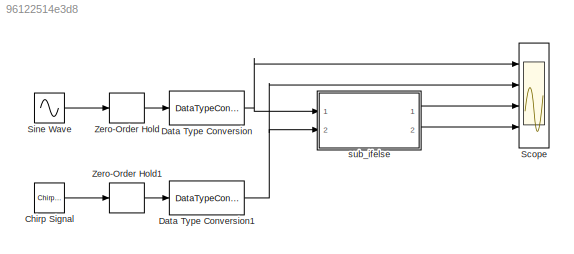
MODEL slx_96122514e3d8
KIND model
CONFIG AbsTol = auto
CONFIG FixedStep = auto
CONFIG MaxStep = auto
CONFIG MinStep = auto
CONFIG PreLoadFcn =  Param1=fi(0.2,1,16,14)
CONFIG RelTol = 1e-3
CONFIG SampleTimeConstraint = Unconstrained
CONFIG Solver = FixedStepDiscrete
CONFIG SolverMode = SingleTasking
CONFIG SolverName = FixedStepDiscrete
CONFIG StartTime = 0.0
CONFIG StopTime = 1
BLOCK [Reference] Chirp Signal  REF=simulink/Sources/Chirp Signal
  Ports = [0, 1]
  SourceBlock = simulink/Sources/Chirp Signal
  SourceType = chirp
BLOCK [DataTypeConversion] Data Type Conversion
  OutDataTypeStr = fixdt(1,16,14)
  RndMeth = Floor
  SaturateOnIntegerOverflow = off
BLOCK [DataTypeConversion] Data Type Conversion1
  OutDataTypeStr = fixdt(1,16,14)
  RndMeth = Floor
  SaturateOnIntegerOverflow = off
BLOCK [Scope] Scope
  NumInputPorts = 4
  Ports = [4]
  ScopeSpecificationString = Simulink.scopes.TimeScopeBlockCfg('CurrentConfiguration', extmgr.ConfigurationSet(extmgr.Configuration('Core','General UI',true),extmgr.Configuration('Core','Source UI',true),extmgr.Configuration('Sources','WiredSimulink',true,'DataLoggingSaveFormat','StructureWithTime','DataLoggingDecimation','1','DataLoggingDecimateData',true),extmgr.Configuration('Visuals','Time Domain',true,'SerializedDisplays...<+3777ch>
BLOCK [Sin] Sine Wave
  Frequency = 100
  Ports = [0, 1]
  SampleTime = 0
BLOCK [ZeroOrderHold] Zero-Order Hold
  SampleTime = 1/1000
BLOCK [ZeroOrderHold] Zero-Order Hold1
  SampleTime = 1/1000
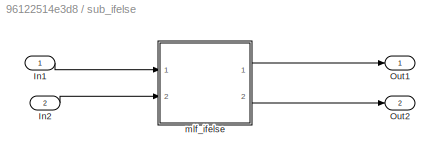
BLOCK [SubSystem] sub_ifelse
  Ports = [2, 2]
  RequestExecContextInheritance = off
  Variant = off
BLOCK [Inport] sub_ifelse/In1
  IconDisplay = Port number
BLOCK [Inport] sub_ifelse/In2
  IconDisplay = Port number
  Port = 2
BLOCK [Outport] sub_ifelse/Out1
  IconDisplay = Port number
BLOCK [Outport] sub_ifelse/Out2
  IconDisplay = Port number
  Port = 2
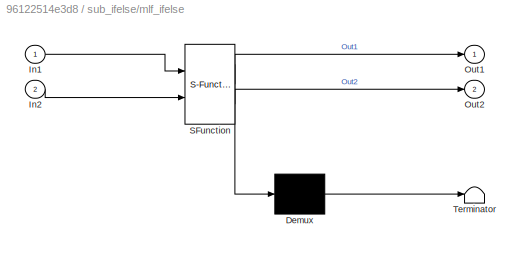
BLOCK [SubSystem] sub_ifelse/mlf_ifelse
  ErrorFcn = Stateflow.Translate.translate
  PermitHierarchicalResolution = ExplicitOnly
  Ports = [2, 2]
  RequestExecContextInheritance = off
  SFBlockType = MATLAB Function
  TreatAsAtomicUnit = on
  Variant = off
BLOCK [Demux] sub_ifelse/mlf_ifelse/ Demux 
  Outputs = 1
  Ports = [1, 1]
BLOCK [S-Function] sub_ifelse/mlf_ifelse/ SFunction 
  EnableBusSupport = on
  FunctionName = sf_sfun
  Parameters = Param1
  PortCounts = [2 3]
  Ports = [2, 3]
  SFunctionDeploymentMode = off
  Tag = Stateflow S-Function mlf_ifelse 1
BLOCK [Terminator] sub_ifelse/mlf_ifelse/ Terminator 
BLOCK [Inport] sub_ifelse/mlf_ifelse/In1
  IconDisplay = Port number
BLOCK [Inport] sub_ifelse/mlf_ifelse/In2
  IconDisplay = Port number
  Port = 2
BLOCK [Outport] sub_ifelse/mlf_ifelse/Out1
  IconDisplay = Port number
BLOCK [Outport] sub_ifelse/mlf_ifelse/Out2
  IconDisplay = Port number
  Port = 2
LINE Chirp Signal:1 -> Zero-Order Hold1:1
NET Data Type Conversion1:1 -> Scope:2, sub_ifelse:2
NET Data Type Conversion:1 -> Scope:1, sub_ifelse:1
LINE Sine Wave:1 -> Zero-Order Hold:1
LINE Zero-Order Hold1:1 -> Data Type Conversion1:1
LINE Zero-Order Hold:1 -> Data Type Conversion:1
LINE sub_ifelse/In1:1 -> sub_ifelse/mlf_ifelse:1
LINE sub_ifelse/In2:1 -> sub_ifelse/mlf_ifelse:2
LINE sub_ifelse/mlf_ifelse:1 -> sub_ifelse/Out1:1
LINE sub_ifelse/mlf_ifelse:2 -> sub_ifelse/Out2:1
LINE sub_ifelse:1 -> Scope:3
LINE sub_ifelse:2 -> Scope:4
note: NET lines group one-source signal fan-out (src -> all destinations, sorted); 1:1 wires keep LINE
CHART sub_ifelse/mlf_ifelse states=1 transitions=1
  STATE_LABEL 'eML_blk_kernel()'
  STATE_LABEL 'SCRIPT:\nfunction [Out1,Out2] = fcn(In1, In2, Param1)\n% If Else\n\n\n% plus\nif In1 > Param1\n\tOut1 = fi(In1 *2 ,1,24,21);\nelse\n\tOut1 = fi(0,1,24,21);\nend\n\n% if minus, flip wave\nif In2 > Param1\n\tOut2 = fi(In2 * 2,1,24,21);\nelse\n\tOut2 = fi(In2 * -2,1,24,21);\nend\n'
